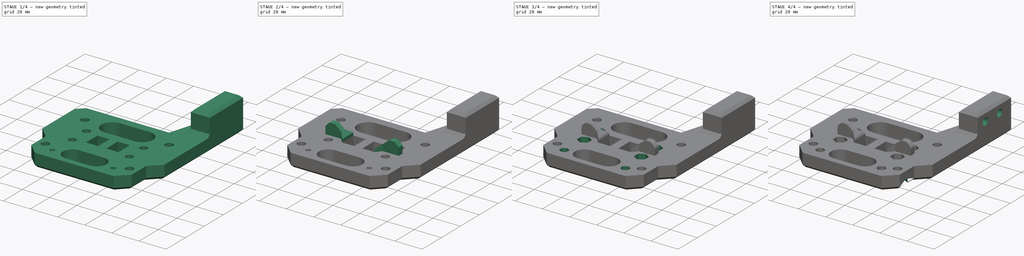
[diagram: build sequence overview — one tinted view per stage of 4, left to right]
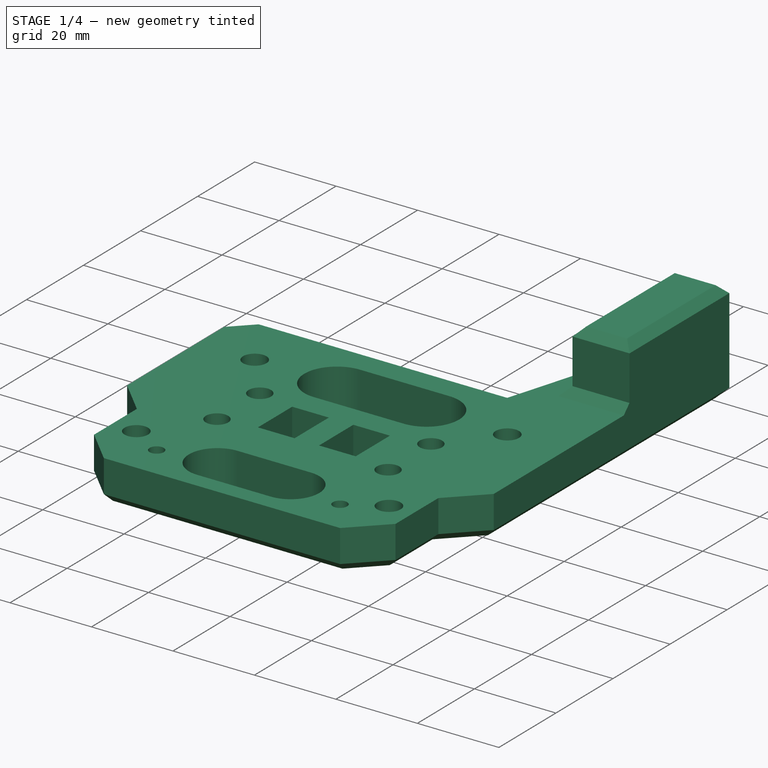
[diagram: stage 1 of 4 — iso view after this stage's code; geometry added in this stage tinted green]
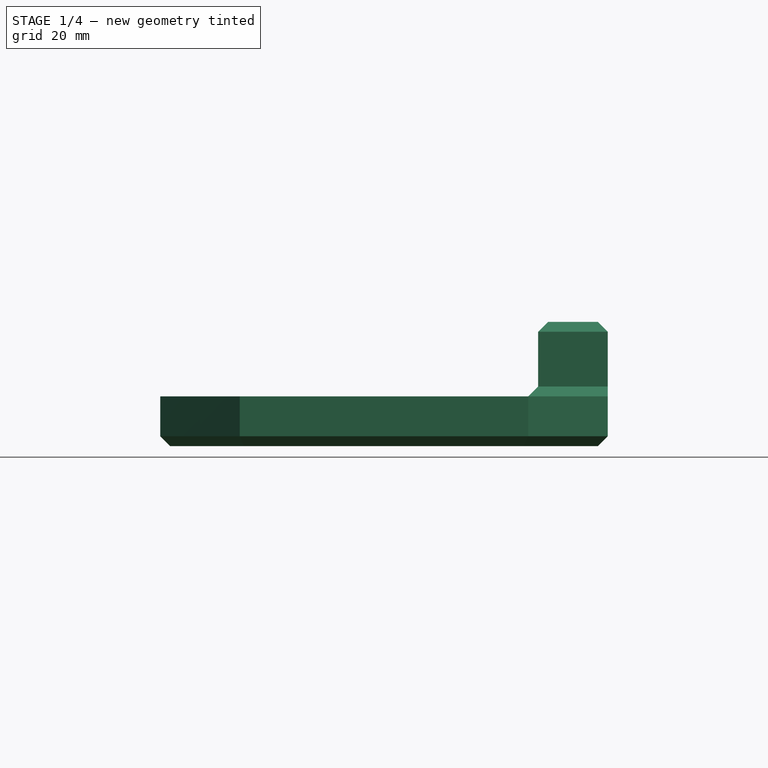
[diagram: stage 1 of 4 — front view after this stage's code; geometry added in this stage tinted green]
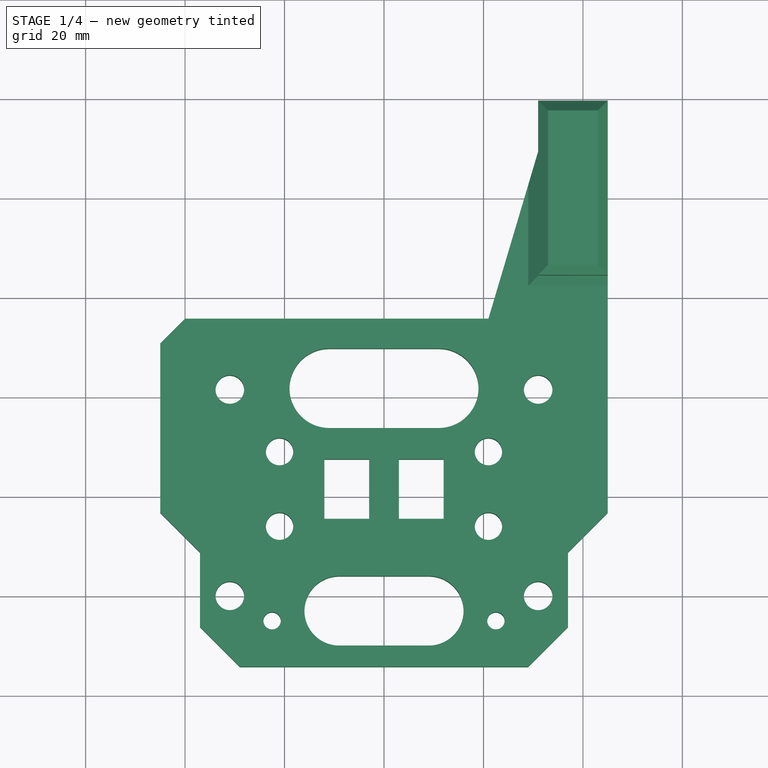
[diagram: stage 1 of 4 — top view after this stage's code; geometry added in this stage tinted green]
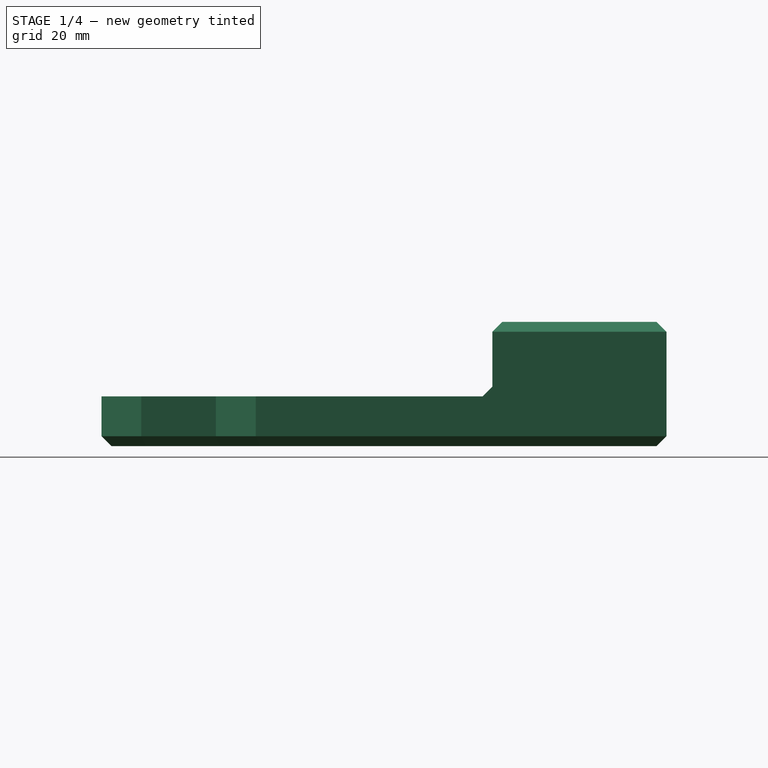
[diagram: stage 1 of 4 — right view after this stage's code; geometry added in this stage tinted green]
FCSTD DOCUMENT  (FreeCAD 0.20R29177 (Git))
Label: x-gantry-back
License: All rights reserved
LicenseURL: http://en.wikipedia.org/wiki/All_rights_reserved
objects: Sketcher::SketchObject×7, PartDesign::Plane×4, PartDesign::Pad×3, PartDesign::Chamfer×3, PartDesign::Pocket×3, PartDesign::Fillet×2, PartDesign::Hole×1, PartDesign::Body×1
note: 36 computed .brp shape members not serialized (recipe doc carries the construction recipe); baked Part::Feature solids carry a one-line shape summary decoded from their .brp

FEATURE [Sketcher::SketchObject] Sketch016  label="Base001"
  FullyConstrained = true
  MapMode = 5
  Support = -> [XY_Plane001]
  expr: Constraints[124] = 39
  sketch-geometry (53):
    g0: LineSegment StartX=0 StartY=0 StartZ=0 EndX=0 EndY=41.5 EndZ=0
    g1: LineSegment StartX=-31 StartY=41.5 StartZ=0 EndX=31 EndY=41.5 EndZ=0
    g2: Circle CenterX=-31 CenterY=41.5 CenterZ=0 NormalX=0 NormalY=0 NormalZ=1 AngleXU=0 Radius=2.875
    g3: Circle CenterX=31 CenterY=41.5 CenterZ=0 NormalX=0 NormalY=0 NormalZ=1 AngleXU=0 Radius=2.875
    g4: LineSegment StartX=45 StartY=55.75 StartZ=0 EndX=45 EndY=16.75 EndZ=0
    g5: LineSegment StartX=-45 StartY=16.75 StartZ=0 EndX=-45 EndY=50.75 EndZ=0
    g6: LineSegment StartX=-21 StartY=29 StartZ=0 EndX=-21 EndY=14 EndZ=0
    g7: LineSegment StartX=-12 StartY=27.5 StartZ=0 EndX=-3 EndY=27.5 EndZ=0
    g8: LineSegment StartX=-3 StartY=27.5 StartZ=0 EndX=-3 EndY=15.5 EndZ=0
    g9: LineSegment StartX=-3 StartY=15.5 StartZ=0 EndX=-12 EndY=15.5 EndZ=0
    g10: LineSegment StartX=-12 StartY=15.5 StartZ=0 EndX=-12 EndY=27.5 EndZ=0
    g11: Circle CenterX=-21 CenterY=29 CenterZ=0 NormalX=0 NormalY=0 NormalZ=1 AngleXU=0 Radius=2.75
    g12: Circle CenterX=-21 CenterY=14 CenterZ=0 NormalX=0 NormalY=0 NormalZ=1 AngleXU=0 Radius=2.75
    g13: LineSegment StartX=-21 StartY=21.5 StartZ=0 EndX=21 EndY=21.5 EndZ=0
    g14: LineSegment StartX=21 StartY=29 StartZ=0 EndX=21 EndY=14 EndZ=0
    g15: Circle CenterX=21 CenterY=29 CenterZ=0 NormalX=0 NormalY=0 NormalZ=1 AngleXU=0 Radius=2.75
    g16: Circle CenterX=21 CenterY=14 CenterZ=0 NormalX=0 NormalY=0 NormalZ=1 AngleXU=0 Radius=2.75
    g17: LineSegment StartX=3 StartY=27.5 StartZ=0 EndX=12 EndY=27.5 EndZ=0
    g18: LineSegment StartX=12 StartY=27.5 StartZ=0 EndX=12 EndY=15.5 EndZ=0
    g19: LineSegment StartX=12 StartY=15.5 StartZ=0 EndX=3 EndY=15.5 EndZ=0
    g20: LineSegment StartX=3 StartY=15.5 StartZ=0 EndX=3 EndY=27.5 EndZ=0
    g21: LineSegment StartX=-22.5 StartY=-5 StartZ=0 EndX=22.5 EndY=-5 EndZ=0
    g22: Circle CenterX=-22.5 CenterY=-5 CenterZ=0 NormalX=0 NormalY=0 NormalZ=1 AngleXU=0 Radius=1.75
    g23: Circle CenterX=22.5 CenterY=-5 CenterZ=0 NormalX=0 NormalY=0 NormalZ=1 AngleXU=0 Radius=1.75
    g24: LineSegment StartX=37 StartY=8.75 StartZ=0 EndX=37 EndY=-6.25 EndZ=0
    g25: LineSegment StartX=37 StartY=-6.25 StartZ=0 EndX=29 EndY=-14.25 EndZ=0
    g26: LineSegment StartX=-29 StartY=-14.25 StartZ=0 EndX=-37 EndY=-6.25 EndZ=0
    g27: LineSegment StartX=-37 StartY=-6.25 StartZ=0 EndX=-37 EndY=8.75 EndZ=0
    g28: LineSegment StartX=-37 StartY=8.75 StartZ=0 EndX=-45 EndY=16.75 EndZ=0
    g29: LineSegment StartX=37 StartY=8.75 StartZ=0 EndX=45 EndY=16.75 EndZ=0
    g30: LineSegment StartX=-29 StartY=-14.25 StartZ=0 EndX=29 EndY=-14.25 EndZ=0
    g31: ArcOfCircle CenterX=-9 CenterY=-3 CenterZ=0 NormalX=0 NormalY=0 NormalZ=1 AngleXU=0 Radius=7 StartAngle=1.5708 EndAngle=4.71239
    g32: ArcOfCircle CenterX=9 CenterY=-3 CenterZ=0 NormalX=0 NormalY=0 NormalZ=1 AngleXU=0 Radius=7 StartAngle=4.71239 EndAngle=7.85398
    g33: LineSegment StartX=-9 StartY=-10 StartZ=0 EndX=9 EndY=-10 EndZ=0
    g34: LineSegment StartX=-9 StartY=4 StartZ=0 EndX=9 EndY=4 EndZ=0
    g35: ArcOfCircle CenterX=-11 CenterY=41.75 CenterZ=0 NormalX=0 NormalY=0 NormalZ=1 AngleXU=0 Radius=8 StartAngle=1.5708 EndAngle=4.71239
    g36: ArcOfCircle CenterX=11 CenterY=41.75 CenterZ=0 NormalX=0 NormalY=0 NormalZ=1 AngleXU=0 Radius=8 StartAngle=4.71239 EndAngle=7.85398
    g37: LineSegment StartX=-11 StartY=33.75 StartZ=0 EndX=11 EndY=33.75 EndZ=0
    g38: LineSegment StartX=-11 StartY=49.75 StartZ=0 EndX=11 EndY=49.75 EndZ=0
    g39: LineSegment StartX=31 StartY=55.75 StartZ=0 EndX=31 EndY=65.75 EndZ=0
    g40: LineSegment StartX=31 StartY=65.75 StartZ=0 EndX=31 EndY=99.35 EndZ=0
    g41: LineSegment StartX=31 StartY=99.35 StartZ=0 EndX=45 EndY=99.35 EndZ=0
    g42: LineSegment StartX=45 StartY=99.35 StartZ=0 EndX=45 EndY=65.75 EndZ=0
    g43: LineSegment StartX=45 StartY=65.75 StartZ=0 EndX=45 EndY=55.75 EndZ=0
    g44: LineSegment StartX=31 StartY=55.75 StartZ=0 EndX=-40 EndY=55.75 EndZ=0
    g45: LineSegment StartX=-45 StartY=50.75 StartZ=0 EndX=-40 EndY=55.75 EndZ=0
    g46: LineSegment StartX=-45 StartY=50.75 StartZ=0 EndX=-45 EndY=55.75 EndZ=0
    g47: LineSegment StartX=-45 StartY=55.75 StartZ=0 EndX=-40 EndY=55.75 EndZ=0
    g48: Circle CenterX=-31 CenterY=0 CenterZ=0 NormalX=0 NormalY=0 NormalZ=1 AngleXU=0 Radius=2.875
    g49: Circle CenterX=31 CenterY=0 CenterZ=0 NormalX=0 NormalY=0 NormalZ=1 AngleXU=0 Radius=2.875
    g50: LineSegment StartX=-40 StartY=55.75 StartZ=0 EndX=21 EndY=55.75 EndZ=0
    g51: LineSegment StartX=21 StartY=55.75 StartZ=0 EndX=31 EndY=89.35 EndZ=0
    g52: LineSegment StartX=31 StartY=99.35 StartZ=0 EndX=31 EndY=89.35 EndZ=0
  constraints (141):
    c: Coincident(g0,g-1)
    c: PointOnObject(g0,g1)
    c: Symmetric(g1,g1,g0)
    c: DistanceY(g0,g0) = 41.5
    c: DistanceX(g1,g1) = 62
    c: Coincident(g2,g1)
    c: Coincident(g3,g1)
    c: Diameter(g3) = 5.75
    c: Diameter(g2) = 5.75
    c: Vertical(g4)
    c: Vertical(g5)
    c: Symmetric(g46,g4,g-2)
    c: DistanceX(g46,g4) = 90
    c: DistanceY(g3,g4) = 14.25
    c: DistanceY(g6,g6) = 15
    c: Coincident(g7,g8)
    c: Coincident(g8,g9)
    c: Coincident(g9,g10)
    c: Coincident(g10,g7)
    c: Horizontal(g7)
    c: Horizontal(g9)
    c: Vertical(g8)
    c: DistanceX(g7,g7) = 9
    c: DistanceY(g10,g10) = 12
    c: Coincident(g11,g6)
    c: Coincident(g12,g6)
    c: Diameter(g11) = 5.5
    c: Diameter(g12) = 5.5
    c: PointOnObject(g13,g6)
    c: Symmetric(g13,g13,g-2)
    c: Symmetric(g11,g12,g13)
    c: Symmetric(g7,g9,g13)
    c: PointOnObject(g13,g14)
    c: Symmetric(g14,g14,g13)
    c: DistanceY(g14,g14) = 15
    c: Coincident(g16,g14)
    c: Diameter(g15) = 5.5
    c: Diameter(g16) = 5.5
    c: Distance(g7,g0) = 3
    c: Distance(g11,g0) = 21
    c: Coincident(g17,g18)
    c: Coincident(g18,g19)
    c: Coincident(g19,g20)
    c: Coincident(g20,g17)
    c: Horizontal(g17)
    c: Horizontal(g19)
    c: Vertical(g18)
    c: DistanceX(g17,g17) = 9
    c: DistanceY(g20,g20) = 12
    c: DistanceX(g-1,g17) = 3
    c: Symmetric(g17,g19,g13)
    c: Symmetric(g21,g21,g-2)
    c: DistanceY(g21,g-1) = 5
    c: DistanceX(g21,g21) = 45
    c: Coincident(g22,g21)
    c: Coincident(g23,g21)
    c: Diameter(g23) = 3.5
    c: Vertical(g24)
    c: Coincident(g25,g24)
    c: Coincident(g27,g26)
    c: Vertical(g27)
    c: Coincident(g28,g27)
    c: Coincident(g29,g24)
    c: Horizontal(g29,g28)
    c: Horizontal(g24,g27)
    c: DistanceX(g27,g24) = 74
    c: DistanceY(g25,g43) = 70
    c: Coincident(g30,g26)
    c: Coincident(g30,g25)
    c: Horizontal(g30)
    c: Angle(g24,g25) = 2.35619
    c: Angle(g26,g27) = 2.35619
    c: Horizontal(g26,g24)
    c: Coincident(g28,g5)
    c: Angle(g28,g5) = 2.35619
    c: DistanceY(g25,g24) = 8
    c: DistanceY(g24,g24) = 15
    c: Equal(g22,g23)
    c: Tangent(g31,g34) = 1.5708
    c: Tangent(g31,g33) = -1.5708
    c: Tangent(g33,g32) = -1.5708
    c: Tangent(g34,g32) = 1.5708
    c: Horizontal(g33)
    c: Symmetric(g31,g32,g0)
    c: Diameter(g32) = 14
    c: DistanceX(g34,g34) = 18
    c: DistanceY(g32,g0) = 3
    c: Vertical(g15,g16)
    c: Horizontal(g15,g11)
    c: Tangent(g35,g38) = 1.5708
    c: Tangent(g35,g37) = -1.5708
    c: Tangent(g37,g36) = -1.5708
    c: Tangent(g38,g36) = 1.5708
    c: Horizontal(g37)
    c: Symmetric(g35,g36,g-2)
    c: Radius(g36) = 8
    c: DistanceY(g36,g43) = 6
    c: Coincident(g40,g39)
    c: Coincident(g41,g40)
    c: Coincident(g42,g41)
    c: Coincident(g43,g42)
    c: Vertical(g43)
    c: Distance(g41) = 14
    c: Perpendicular(g41,g40)
    c: Angle(g39,g40) = 3.14159
    c: Parallel(g42,g40)
    c: DistanceY(g43,g43) = 10
    c: Horizontal(g44)
    c: Vertical(g39)
    c: Coincident(g39,g44)
    c: DistanceY(g39,g40) = 43.6
    c: Horizontal(g39,g42)
    c: DistanceX(g46,g45) = 5
    c: DistanceY(g45,g46) = 5
    c: Coincident(g5,g45)
    c: Coincident(g46,g5)
    c: Vertical(g46)
    c: Coincident(g44,g45)
    c: Coincident(g47,g46)
    c: Coincident(g47,g44)
    c: Horizontal(g47)
    c: DistanceX(g44,g39) = 71
    c: DistanceY(g5,g5) = 34
    c: Coincident(g4,g29)
    c: DistanceY(g4,g43) = 39
    c: DistanceY(g48,g0) = 0
    c: Vertical(g2,g48)
    c: Symmetric(g49,g48,g0)
    c: Equal(g48,g2)
    c: Equal(g49,g3)
    c: DistanceX(g35,g36) = 22
    c: Coincident(g50,g45)
    c: PointOnObject(g50,g44)
    c: Coincident(g51,g50)
    c: PointOnObject(g51,g40)
    c: Coincident(g52,g41)
    c: Coincident(g52,g51)
    c: DistanceY(g52,g52) = 10
    c: DistanceX(g50,g51) = 10
    c: DistanceY(g0,g13) = 21.5  'BeltStandoffY'
    c: Vertical(g0)
FEATURE [PartDesign::Pad] Pad004  label="Base"
  AllowMultiFace = false
  Direction = (0,0,1)
  Length = 10
  Length2 = 100
  Profile = -> Sketch016
  ReferenceAxis = -> Sketch016 [N_Axis]
  Refine = true
  Type = 0
FEATURE [PartDesign::Plane] DatumPlane008  label="Front face"
  Length = 60
  MapMode = 5
  Placement = pos=(0,0,10) rot=(0,0,1;0rad)
  ResizeMode = 0
  Support = -> [Pad004]
  Width = 60
FEATURE [Sketcher::SketchObject] Sketch013  label="CableSupport001"
  FullyConstrained = true
  MapMode = 5
  Placement = pos=(0,0,10) rot=(0,0,1;0rad)
  Support = -> [DatumPlane008]
  sketch-geometry (4):
    g0: LineSegment StartX=45 StartY=99.35 StartZ=0 EndX=45 EndY=64.35 EndZ=0
    g1: LineSegment StartX=45 StartY=64.35 StartZ=0 EndX=31 EndY=64.35 EndZ=0
    g2: LineSegment StartX=31 StartY=64.35 StartZ=0 EndX=31 EndY=99.35 EndZ=0
    g3: LineSegment StartX=31 StartY=99.35 StartZ=0 EndX=45 EndY=99.35 EndZ=0
  constraints (12):
    c: Coincident(g0,g1)
    c: Coincident(g1,g2)
    c: Horizontal(g1)
    c: Vertical(g0)
    c: Vertical(g2)
    c: Coincident(g0,g3)
    c: Coincident(g3,g2)
    c: DistanceX(g-1,g1) = 31
    c: DistanceX(g3,g3) = 14
    c: DistanceY(g0,g0) = 35
    c: Equal(g1,g3)
    c: DistanceY(g-1,g2) = 99.35
FEATURE [Sketcher::SketchObject] Sketch018  label="M5Nuts001"
  FullyConstrained = true
  MapMode = 5
  Placement = pos=(0,0,10) rot=(0,0,1;0rad)
  Support = -> [DatumPlane008]
  sketch-geometry (42):
    g0: LineSegment StartX=-17 StartY=26.6906 StartZ=0 EndX=-17 EndY=31.3094 EndZ=0
    g1: LineSegment StartX=-17 StartY=31.3094 StartZ=0 EndX=-21 EndY=33.6188 EndZ=0
    g2: LineSegment StartX=-21 StartY=33.6188 StartZ=0 EndX=-25 EndY=31.3094 EndZ=0
    g3: LineSegment StartX=-25 StartY=31.3094 StartZ=0 EndX=-25 EndY=26.6906 EndZ=0
    g4: LineSegment StartX=-25 StartY=26.6906 StartZ=0 EndX=-21 EndY=24.3812 EndZ=0
    g5: LineSegment StartX=-21 StartY=24.3812 StartZ=0 EndX=-17 EndY=26.6906 EndZ=0
    g6: Circle CenterX=-21 CenterY=29 CenterZ=0 NormalX=0 NormalY=0 NormalZ=1 AngleXU=0 Radius=4.6188
    g7: LineSegment StartX=-17 StartY=11.6906 StartZ=0 EndX=-17 EndY=16.3094 EndZ=0
    g8: LineSegment StartX=-17 StartY=16.3094 StartZ=0 EndX=-21 EndY=18.6188 EndZ=0
    g9: LineSegment StartX=-21 StartY=18.6188 StartZ=0 EndX=-25 EndY=16.3094 EndZ=0
    g10: LineSegment StartX=-25 StartY=16.3094 StartZ=0 EndX=-25 EndY=11.6906 EndZ=0
    g11: LineSegment StartX=-25 StartY=11.6906 StartZ=0 EndX=-21 EndY=9.3812 EndZ=0
    g12: LineSegment StartX=-21 StartY=9.3812 StartZ=0 EndX=-17 EndY=11.6906 EndZ=0
    g13: Circle CenterX=-21 CenterY=14 CenterZ=0 NormalX=0 NormalY=0 NormalZ=1 AngleXU=0 Radius=4.6188
    g14: LineSegment StartX=-19.75 StartY=-6.58771 StartZ=0 EndX=-19.75 EndY=-3.41229 EndZ=0
    g15: LineSegment StartX=-19.75 StartY=-3.41229 StartZ=0 EndX=-22.5 EndY=-1.82457 EndZ=0
    g16: LineSegment StartX=-22.5 StartY=-1.82457 StartZ=0 EndX=-25.25 EndY=-3.41229 EndZ=0
    g17: LineSegment StartX=-25.25 StartY=-3.41229 StartZ=0 EndX=-25.25 EndY=-6.58771 EndZ=0
    g18: LineSegment StartX=-25.25 StartY=-6.58771 StartZ=0 EndX=-22.5 EndY=-8.17543 EndZ=0
    g19: LineSegment StartX=-22.5 StartY=-8.17543 StartZ=0 EndX=-19.75 EndY=-6.58771 EndZ=0
    g20: Circle CenterX=-22.5 CenterY=-5 CenterZ=0 NormalX=0 NormalY=0 NormalZ=1 AngleXU=0 Radius=3.17543
    g21: LineSegment StartX=25.25 StartY=-6.58771 StartZ=0 EndX=25.25 EndY=-3.41229 EndZ=0
    g22: LineSegment StartX=25.25 StartY=-3.41229 StartZ=0 EndX=22.5 EndY=-1.82457 EndZ=0
    g23: LineSegment StartX=22.5 StartY=-1.82457 StartZ=0 EndX=19.75 EndY=-3.41229 EndZ=0
    g24: LineSegment StartX=19.75 StartY=-3.41229 StartZ=0 EndX=19.75 EndY=-6.58771 EndZ=0
    g25: LineSegment StartX=19.75 StartY=-6.58771 StartZ=0 EndX=22.5 EndY=-8.17543 EndZ=0
    g26: LineSegment StartX=22.5 StartY=-8.17543 StartZ=0 EndX=25.25 EndY=-6.58771 EndZ=0
    g27: Circle CenterX=22.5 CenterY=-5 CenterZ=0 NormalX=0 NormalY=0 NormalZ=1 AngleXU=0 Radius=3.17543
    g28: LineSegment StartX=25 StartY=11.6906 StartZ=0 EndX=25 EndY=16.3094 EndZ=0
    g29: LineSegment StartX=25 StartY=16.3094 StartZ=0 EndX=21 EndY=18.6188 EndZ=0
    g30: LineSegment StartX=21 StartY=18.6188 StartZ=0 EndX=17 EndY=16.3094 EndZ=0
    g31: LineSegment StartX=17 StartY=16.3094 StartZ=0 EndX=17 EndY=11.6906 EndZ=0
    g32: LineSegment StartX=17 StartY=11.6906 StartZ=0 EndX=21 EndY=9.3812 EndZ=0
    g33: LineSegment StartX=21 StartY=9.3812 StartZ=0 EndX=25 EndY=11.6906 EndZ=0
    g34: Circle CenterX=21 CenterY=14 CenterZ=0 NormalX=0 NormalY=0 NormalZ=1 AngleXU=0 Radius=4.6188
    g35: LineSegment StartX=25 StartY=26.6906 StartZ=0 EndX=25 EndY=31.3094 EndZ=0
    g36: LineSegment StartX=25 StartY=31.3094 StartZ=0 EndX=21 EndY=33.6188 EndZ=0
    g37: LineSegment StartX=21 StartY=33.6188 StartZ=0 EndX=17 EndY=31.3094 EndZ=0
    g38: LineSegment StartX=17 StartY=31.3094 StartZ=0 EndX=17 EndY=26.6906 EndZ=0
    g39: LineSegment StartX=17 StartY=26.6906 StartZ=0 EndX=21 EndY=24.3812 EndZ=0
    g40: LineSegment StartX=21 StartY=24.3812 StartZ=0 EndX=25 EndY=26.6906 EndZ=0
    g41: Circle CenterX=21 CenterY=29 CenterZ=0 NormalX=0 NormalY=0 NormalZ=1 AngleXU=0 Radius=4.6188
  constraints (100):
    c: Coincident(g0,g1)
    c: Coincident(g1,g2)
    c: Coincident(g2,g3)
    c: Coincident(g3,g4)
    c: Coincident(g4,g5)
    c: Coincident(g5,g0)
    c: Equal(g0, g1-g5) x5
    c: PointOnObject(g0,g6)
    c: PointOnObject(g1,g6)
    c: PointOnObject(g2,g6)
    c: PointOnObject(g3,g6)
    c: PointOnObject(g4,g6)
    c: PointOnObject(g5,g6)
    c: Coincident(g7,g8)
    c: Coincident(g8,g9)
    c: Coincident(g9,g10)
    c: Coincident(g10,g11)
    c: Coincident(g11,g12)
    c: Coincident(g12,g7)
    c: Equal(g7, g8-g12) x5
    c: PointOnObject(g7,g13)
    c: PointOnObject(g8,g13)
    c: PointOnObject(g9,g13)
    c: PointOnObject(g10,g13)
    c: PointOnObject(g11,g13)
    c: PointOnObject(g12,g13)
    c: Coincident(g14,g15)
    c: Coincident(g15,g16)
    c: Coincident(g16,g17)
    c: Coincident(g17,g18)
    c: Coincident(g18,g19)
    c: Coincident(g19,g14)
    c: Equal(g14, g15-g19) x5
    c: PointOnObject(g14,g20)
    c: PointOnObject(g15,g20)
    c: PointOnObject(g16,g20)
    c: PointOnObject(g17,g20)
    c: PointOnObject(g18,g20)
    c: PointOnObject(g19,g20)
    c: Coincident(g21,g22)
    c: Coincident(g22,g23)
    c: Coincident(g23,g24)
    c: Coincident(g24,g25)
    c: Coincident(g25,g26)
    c: Coincident(g26,g21)
    c: Equal(g21, g22-g26) x5
    c: PointOnObject(g21,g27)
    c: PointOnObject(g22,g27)
    c: PointOnObject(g23,g27)
    c: PointOnObject(g24,g27)
    c: PointOnObject(g25,g27)
    c: PointOnObject(g26,g27)
    c: Coincident(g28,g29)
    c: Coincident(g29,g30)
    c: Coincident(g30,g31)
    c: Coincident(g31,g32)
    c: Coincident(g32,g33)
    c: Coincident(g33,g28)
    c: Equal(g28, g29-g33) x5
    c: PointOnObject(g28,g34)
    c: PointOnObject(g29,g34)
    c: PointOnObject(g30,g34)
    c: PointOnObject(g31,g34)
    c: PointOnObject(g32,g34)
    c: PointOnObject(g33,g34)
    c: Coincident(g35,g36)
    c: Coincident(g36,g37)
    c: Coincident(g37,g38)
    c: Coincident(g38,g39)
    c: Coincident(g39,g40)
    c: Coincident(g40,g35)
    c: Equal(g35, g36-g40) x5
    c: PointOnObject(g35,g41)
    c: PointOnObject(g36,g41)
    c: PointOnObject(g37,g41)
    c: PointOnObject(g38,g41)
    c: PointOnObject(g39,g41)
    c: PointOnObject(g40,g41)
    c: Vertical(g10)
    c: Vertical(g3)
    c: Vertical(g17)
    c: Vertical(g24)
    c: Vertical(g31)
    c: Vertical(g38)
    c: DistanceX(g20,g-1) = 22.5
    c: DistanceX(g-1,g27) = 22.5
    c: DistanceX(g-1,g34) = 21
    c: DistanceX(g-1,g41) = 21
    c: DistanceY(g20,g-1) = 5
    c: DistanceY(g27,g-1) = 5
    c: DistanceX(g2,g0) = 8
    c: Equal(g6,g13)
    c: Equal(g13,g34)
    c: Equal(g34,g41)
    c: DistanceX(g17,g14) = 5.5
    c: Equal(g20,g27)
    c: DistanceY(g13,g6) = 15
    c: DistanceY(g-1,g13) = 14
    c: Symmetric(g13,g34,g-2)
    c: Symmetric(g41,g6,g-2)
FEATURE [PartDesign::Plane] DatumPlane009  label="Part number plane"
  Length = 60
  MapMode = 5
  Placement = pos=(0,55.75,0) rot=(0,0.707107,0.707107;3.14159rad)
  ResizeMode = 0
  Support = -> [Pad004]
  Width = 60
FEATURE [Sketcher::SketchObject] Sketch021
  FullyConstrained = true
  MapMode = 5
  Placement = pos=(0,0,10) rot=(0,0,1;0rad)
  Support = -> [DatumPlane008]
  expr: Constraints[36] = <<Base001>>.Constraints.BeltStandoffY
  sketch-geometry (13):
    g0: LineSegment StartX=-12 StartY=27.5 StartZ=0 EndX=-15.3564 EndY=23.5 EndZ=0
    g1: LineSegment StartX=-15.3564 StartY=23.5 StartZ=0 EndX=-27 EndY=23.5 EndZ=0
    g2: LineSegment StartX=-27 StartY=23.5 StartZ=0 EndX=-27 EndY=19.5 EndZ=0
    g3: LineSegment StartX=-27 StartY=19.5 StartZ=0 EndX=-15.3564 EndY=19.5 EndZ=0
    g4: LineSegment StartX=-15.3564 StartY=19.5 StartZ=0 EndX=-12 EndY=15.5 EndZ=0
    g5: LineSegment StartX=-12 StartY=15.5 StartZ=0 EndX=-12 EndY=27.5 EndZ=0
    g6: LineSegment StartX=12 StartY=27.5 StartZ=0 EndX=12 EndY=15.5 EndZ=0
    g7: LineSegment StartX=12 StartY=15.5 StartZ=0 EndX=15.3564 EndY=19.5 EndZ=0
    g8: LineSegment StartX=15.3564 StartY=19.5 StartZ=0 EndX=27 EndY=19.5 EndZ=0
    g9: LineSegment StartX=27 StartY=19.5 StartZ=0 EndX=27 EndY=23.5 EndZ=0
    g10: LineSegment StartX=27 StartY=23.5 StartZ=0 EndX=15.3564 EndY=23.5 EndZ=0
    g11: LineSegment StartX=15.3564 StartY=23.5 StartZ=0 EndX=12 EndY=27.5 EndZ=0
    g12: LineSegment StartX=-27 StartY=21.5 StartZ=0 EndX=27 EndY=21.5 EndZ=0
  constraints (38):
    c: Coincident(g0,g1)
    c: Horizontal(g1)
    c: Coincident(g1,g2)
    c: Vertical(g2)
    c: Coincident(g2,g3)
    c: Horizontal(g3)
    c: Coincident(g3,g4)
    c: Coincident(g4,g5)
    c: Coincident(g5,g0)
    c: Vertical(g5)
    c: DistanceX(g4,g-1) = 12
    c: DistanceY(g5,g5) = 12
    c: DistanceY(g2,g2) = 4
    c: Equal(g1,g3)
    c: Angle(g0,g5) = 0.698132
    c: Angle(g5,g4) = 0.698132
    c: DistanceX(g2,g4) = 15
    c: Vertical(g6)
    c: Coincident(g6,g7)
    c: Coincident(g7,g8)
    c: Horizontal(g8)
    c: Coincident(g8,g9)
    c: Coincident(g9,g10)
    c: Horizontal(g10)
    c: Coincident(g10,g11)
    c: Coincident(g11,g6)
    c: Equal(g10,g8)
    c: DistanceY(g6,g6) = 12
    c: DistanceY(g9,g9) = 4
    c: Angle(g6,g11) = 0.698132
    c: Angle(g7,g6) = 0.698132
    c: DistanceX(g-1,g6) = 12
    c: DistanceX(g6,g8) = 15
    c: PointOnObject(g12,g2)
    c: PointOnObject(g12,g9)
    c: Symmetric(g2,g1,g12)
    c: DistanceY(g-1,g12) = 21.5
    c: Symmetric(g8,g9,g12)
FEATURE [PartDesign::Plane] DatumPlane012  label="Drag chain mount inner plane"
  Length = 60
  MapMode = 5
  Placement = pos=(31,-1.12e-14,0) rot=(-0.57735,0.57735,0.57735;4.18879rad)
  ResizeMode = 0
  Support = -> [Pad004]
  Width = 60
FEATURE [Sketcher::SketchObject] Sketch015
  FullyConstrained = false
  MapMode = 5
  Placement = pos=(31,-1.12e-14,0) rot=(-0.57735,0.57735,0.57735;4.18879rad)
  Support = -> [DatumPlane012]
  expr: Constraints[38] = <<Sketch022>>.Constraints.XOffset
  expr: Constraints[39] = <<Sketch022>>.Constraints.YOffset
  sketch-geometry (14):
    g0: LineSegment StartX=-84.9983 StartY=21.3553 StartZ=0 EndX=-89.5017 EndY=21.3553 EndZ=0
    g1: LineSegment StartX=-89.5017 StartY=21.3553 StartZ=0 EndX=-91.7533 EndY=17.4553 EndZ=0
    g2: LineSegment StartX=-91.7533 StartY=17.4553 StartZ=0 EndX=-89.5017 EndY=13.5553 EndZ=0
    g3: LineSegment StartX=-89.5017 StartY=13.5553 StartZ=0 EndX=-84.9983 EndY=13.5553 EndZ=0
    g4: LineSegment StartX=-84.9983 StartY=13.5553 StartZ=0 EndX=-82.7467 EndY=17.4553 EndZ=0
    g5: LineSegment StartX=-82.7467 StartY=17.4553 StartZ=0 EndX=-84.9983 EndY=21.3553 EndZ=0
    g6: Circle CenterX=-87.25 CenterY=17.4553 CenterZ=0 NormalX=0 NormalY=0 NormalZ=1 AngleXU=0 Radius=4.50333
    g7: LineSegment StartX=-67.7467 StartY=17.5 StartZ=0 EndX=-69.9983 EndY=21.4 EndZ=0
    g8: LineSegment StartX=-69.9983 StartY=21.4 StartZ=0 EndX=-74.5017 EndY=21.4 EndZ=0
    g9: LineSegment StartX=-74.5017 StartY=21.4 StartZ=0 EndX=-76.7533 EndY=17.5 EndZ=0
    g10: LineSegment StartX=-76.7533 StartY=17.5 StartZ=0 EndX=-74.5017 EndY=13.6 EndZ=0
    g11: LineSegment StartX=-74.5017 StartY=13.6 StartZ=0 EndX=-69.9983 EndY=13.6 EndZ=0
    g12: LineSegment StartX=-69.9983 StartY=13.6 StartZ=0 EndX=-67.7467 EndY=17.5 EndZ=0
    g13: Circle CenterX=-72.25 CenterY=17.5 CenterZ=0 NormalX=0 NormalY=0 NormalZ=1 AngleXU=0 Radius=4.50333
  constraints (33):
    c: Coincident(g0,g1)
    c: Coincident(g1,g2)
    c: Coincident(g2,g3)
    c: Coincident(g3,g4)
    c: Coincident(g4,g5)
    c: Coincident(g5,g0)
    c: Equal(g0, g1-g5) x5
    c: PointOnObject(g0,g6)
    c: PointOnObject(g1,g6)
    c: PointOnObject(g2,g6)
    c: PointOnObject(g3,g6)
    c: PointOnObject(g4,g6)
    c: PointOnObject(g5,g6)
    c: Coincident(g7,g8)
    c: Coincident(g8,g9)
    c: Coincident(g9,g10)
    c: Coincident(g10,g11)
    c: Coincident(g11,g12)
    c: Coincident(g12,g7)
    c: Equal(g7, g8-g12) x5
    c: PointOnObject(g7,g13)
    c: PointOnObject(g8,g13)
    c: PointOnObject(g9,g13)
    c: PointOnObject(g10,g13)
    c: PointOnObject(g11,g13)
    c: PointOnObject(g12,g13)
    c: Equal(g6,g13)
    c: Horizontal(g0)
    c: Horizontal(g8)
    c: DistanceY(g3,g0) = 7.8
    c: DistanceX(g13,g-1) = 72.25
    c: DistanceY(g-1,g13) = 17.5
    c: DistanceX(g6,g13) = 15
FEATURE [Sketcher::SketchObject] Sketch022
  FullyConstrained = true
  MapMode = 5
  Placement = pos=(31,-1.12e-14,0) rot=(-0.57735,0.57735,0.57735;4.18879rad)
  Support = -> [DatumPlane012]
  sketch-geometry (13):
    g0: GeomPoint X=-79.75 Y=17.5 Z=0
    g1: LineSegment StartX=-79.75 StartY=17.5 StartZ=0 EndX=-72.25 EndY=17.5 EndZ=0
    g2: LineSegment StartX=-79.75 StartY=17.5 StartZ=0 EndX=-87.25 EndY=17.5 EndZ=0
    g3: Circle CenterX=-72.25 CenterY=17.5 CenterZ=0 NormalX=0 NormalY=0 NormalZ=1 AngleXU=0 Radius=2.5
    g4: Circle CenterX=-87.25 CenterY=17.5 CenterZ=0 NormalX=0 NormalY=0 NormalZ=1 AngleXU=0 Radius=2.5
    g5: LineSegment StartX=-98.5 StartY=-15 StartZ=0 EndX=-61 EndY=-15 EndZ=0
    g6: LineSegment StartX=-61 StartY=-15 StartZ=0 EndX=-61 EndY=25 EndZ=0
    g7: LineSegment StartX=-61 StartY=25 StartZ=0 EndX=-98.5 EndY=25 EndZ=0
    g8: LineSegment StartX=-98.5 StartY=25 StartZ=0 EndX=-98.5 EndY=-15 EndZ=0
    g9: GeomPoint X=-79.75 Y=25 Z=0
    g10: GeomPoint X=-79.75 Y=25 Z=0
    g11: GeomPoint X=-79.75 Y=25 Z=0
    g12: GeomPoint X=-79.75 Y=25 Z=0
  constraints (30):
    c: Coincident(g1,g0)
    c: Horizontal(g1)
    c: Horizontal(g2)
    c: Coincident(g2,g1)
    c: Equal(g2,g1)
    c: Coincident(g3,g1)
    c: Coincident(g4,g2)
    c: Distance(g4,g3) = 15
    c: Equal(g3,g4)
    c: Radius(g3) = 2.5
    c: Coincident(g5,g6)
    c: Coincident(g6,g7)
    c: Coincident(g7,g8)
    c: Coincident(g8,g5)
    c: Horizontal(g5)
    c: Horizontal(g7)
    c: Vertical(g6)
    c: Vertical(g8)
    c: Coincident(g10,g9)
    c: Coincident(g11,g9)
    c: Coincident(g12,g9)
    c: Symmetric(g7,g7,g9)
    c: Vertical(g9,g0)
    c: DistanceY(g3,g6) = 7.5
    c: DistanceX(g7,g6) = 37.5
    c: DistanceY(g6,g6) = 40
    c: DistanceY(g-1,g6) = 25
    c: DistanceX(g6,g-1) = 61
    c: DistanceX(g3,g-1) = 72.25  'XOffset'
    c: DistanceY(g-1,g3) = 17.5  'YOffset'
FEATURE [PartDesign::Pad] Pad007  label="Pad cable chain support"
  AllowMultiFace = false
  BaseFeature = -> Pad004
  Direction = (0,0,1)
  Length = 15
  Length2 = 100
  Profile = -> Sketch013
  Type = 0
FEATURE [Sketcher::SketchObject] Sketch023  label="M5SlotCutOuts001"
  FullyConstrained = true
  MapMode = 5
  Support = -> [XY_Plane001]
  sketch-geometry (5):
    g0: Circle CenterX=-31 CenterY=41.5 CenterZ=0 NormalX=0 NormalY=0 NormalZ=1 AngleXU=0 Radius=6
    g1: Circle CenterX=31 CenterY=41.5 CenterZ=0 NormalX=0 NormalY=0 NormalZ=1 AngleXU=0 Radius=6
    g2: Circle CenterX=-31 CenterY=0 CenterZ=0 NormalX=0 NormalY=0 NormalZ=1 AngleXU=0 Radius=6
    g3: LineSegment StartX=-31 StartY=41.5 StartZ=0 EndX=31 EndY=41.5 EndZ=0
    g4: Circle CenterX=31 CenterY=0 CenterZ=0 NormalX=0 NormalY=0 NormalZ=1 AngleXU=0 Radius=6
  constraints (12):
    c: Symmetric(g0,g1,g-2)
    c: DistanceX(g3,g3) = 62
    c: DistanceY(g-1,g0) = 41.5
    c: DistanceY(g2,g-1) = 0
    c: Equal(g2,g0)
    c: Equal(g0,g1)
    c: Equal(g2,g4)
    c: Diameter(g2) = 12
    c: Vertical(g2,g0)
    c: Coincident(g1,g3)
    c: Coincident(g3,g0)
    c: Symmetric(g2,g4,g-2)
FEATURE [PartDesign::Chamfer] Chamfer  label="Elephant's foot chamfer"
  Angle = 45
  Base = -> Pad007 [Edge12,Edge13,Edge14,Edge15,Edge16,Edge17,Edge18,Edge19,Edge20,Edge21,Edge22,Edge3,Edge6,Edge56,Edge132,Edge59,Edge133,Edge23,Edge70,Edge55]
  BaseFeature = -> Pad007
  ChamferType = 0
  FlipDirection = false
  Size = 2
  Size2 = 1
  SupportTransform = false
  UseAllEdges = false
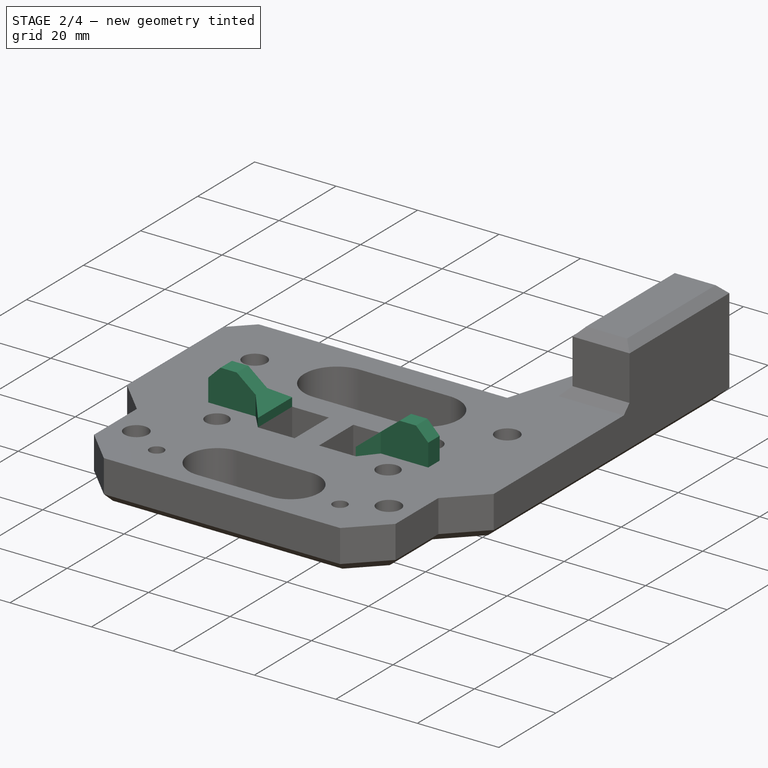
[diagram: stage 2 of 4 — iso view after this stage's code; geometry added in this stage tinted green]
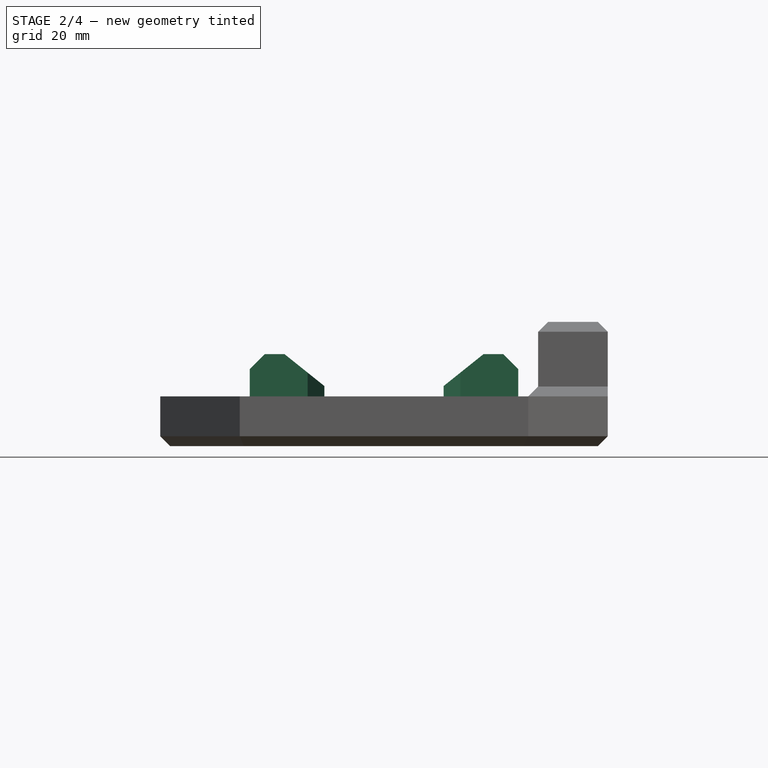
[diagram: stage 2 of 4 — front view after this stage's code; geometry added in this stage tinted green]
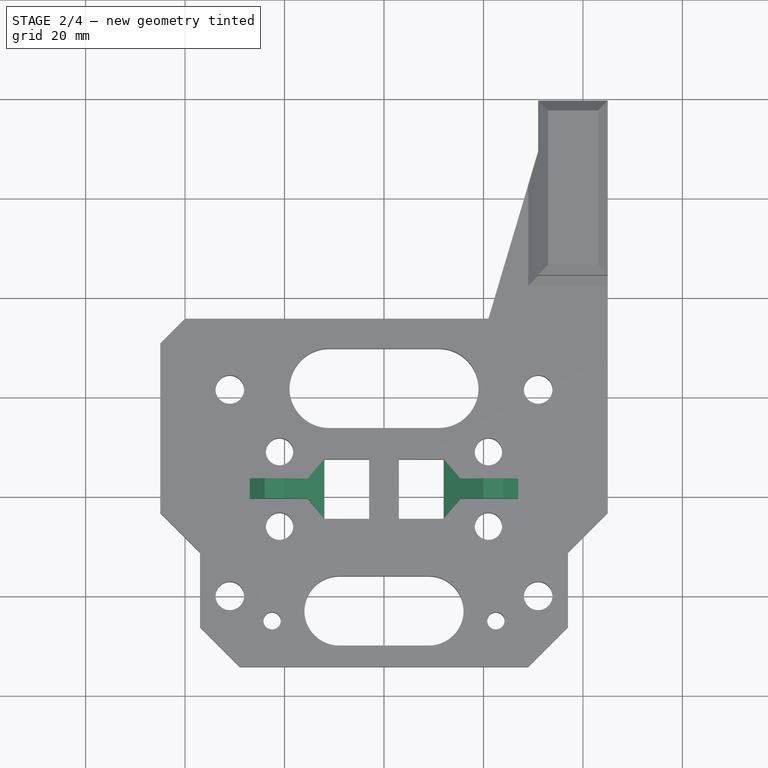
[diagram: stage 2 of 4 — top view after this stage's code; geometry added in this stage tinted green]
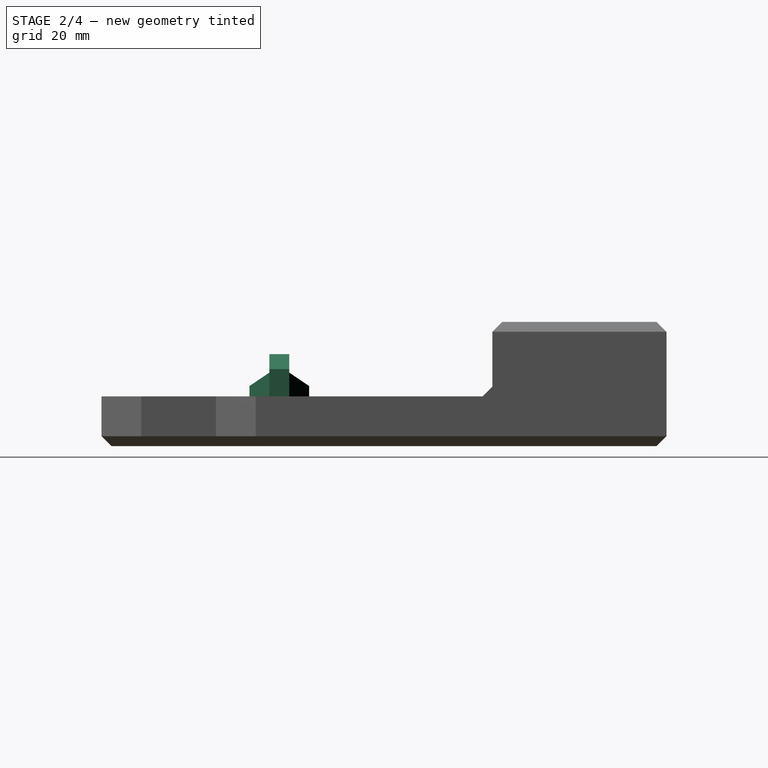
[diagram: stage 2 of 4 — right view after this stage's code; geometry added in this stage tinted green]
FEATURE [PartDesign::Pad] Pad006  label="Pad belt standoffs"
  BaseFeature = -> Chamfer
  Direction = (0,0,1)
  Length = 8.5
  Length2 = 100
  Profile = -> Sketch021
  Type = 0
FEATURE [PartDesign::Plane] DatumPlane010  label="PrintPlane"
  Length = 61.8921
  MapMode = 5
  Placement = pos=(21.5,0,-21.5) rot=(0.678598,0.678598,0.281085;2.59356rad)
  ResizeMode = 0
  Support = -> [Pad006]
  Width = 82.6027
FEATURE [PartDesign::Chamfer] Chamfer017  label="Belt standoff chamfer inner"
  Angle = 45
  Base = -> Pad006 [Edge210,Edge209]
  BaseFeature = -> Pad006
  ChamferType = 1
  FlipDirection = false
  Size = 6.4
  Size2 = 8
  SupportTransform = false
  UseAllEdges = false
FEATURE [PartDesign::Chamfer] Chamfer018  label="Belt standoff chamfer outer"
  Angle = 45
  Base = -> Chamfer017 [Edge137,Edge62]
  BaseFeature = -> Chamfer017
  ChamferType = 0
  FlipDirection = false
  Size = 3
  Size2 = 1
  SupportTransform = false
  UseAllEdges = false
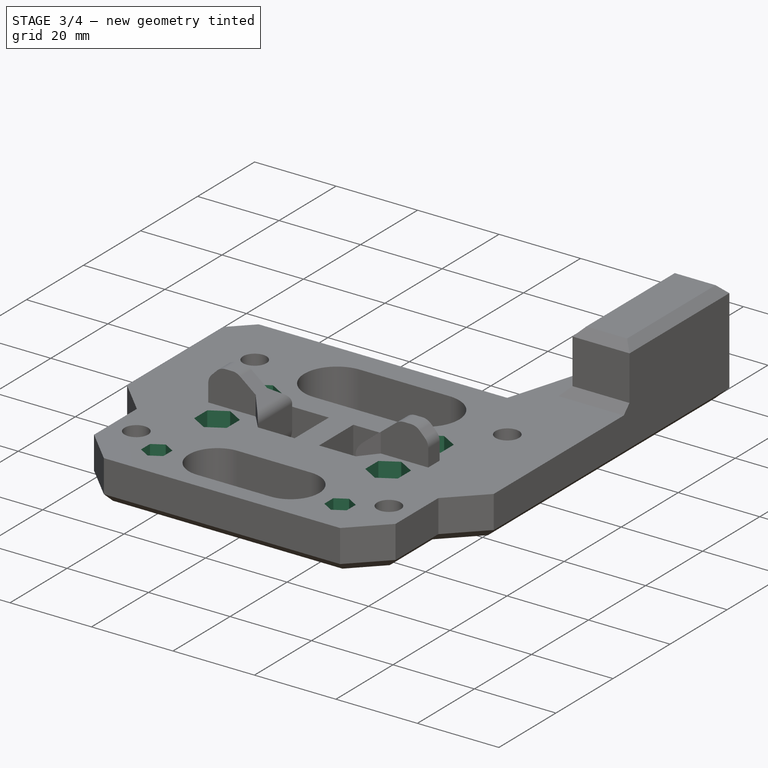
[diagram: stage 3 of 4 — iso view after this stage's code; geometry added in this stage tinted green]
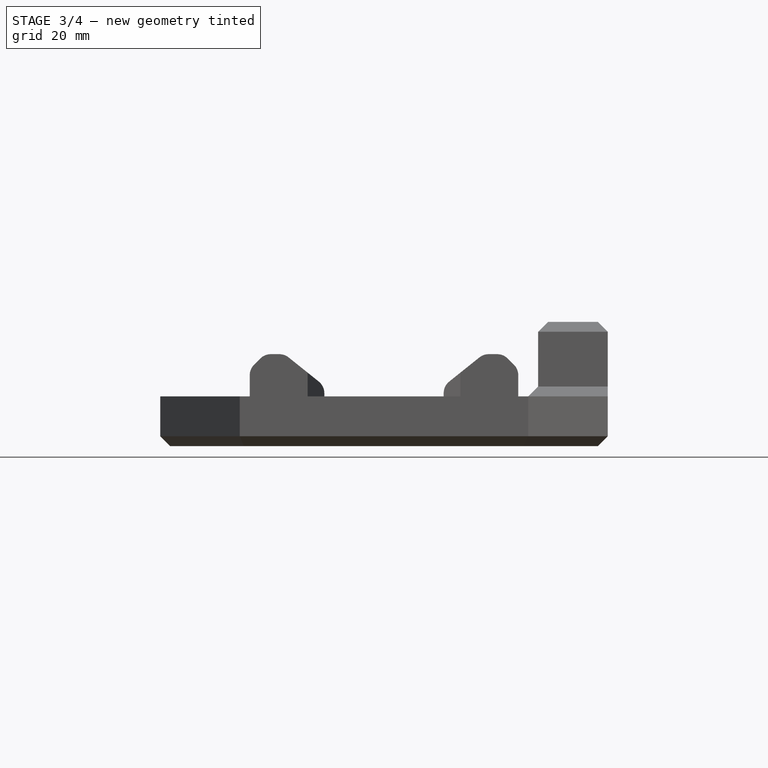
[diagram: stage 3 of 4 — front view after this stage's code; geometry added in this stage tinted green]
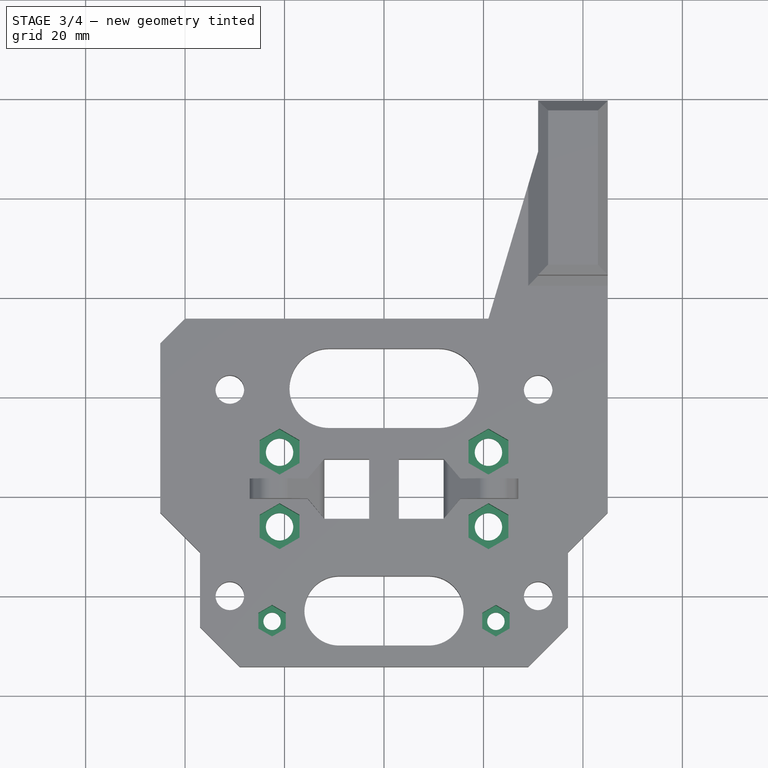
[diagram: stage 3 of 4 — top view after this stage's code; geometry added in this stage tinted green]
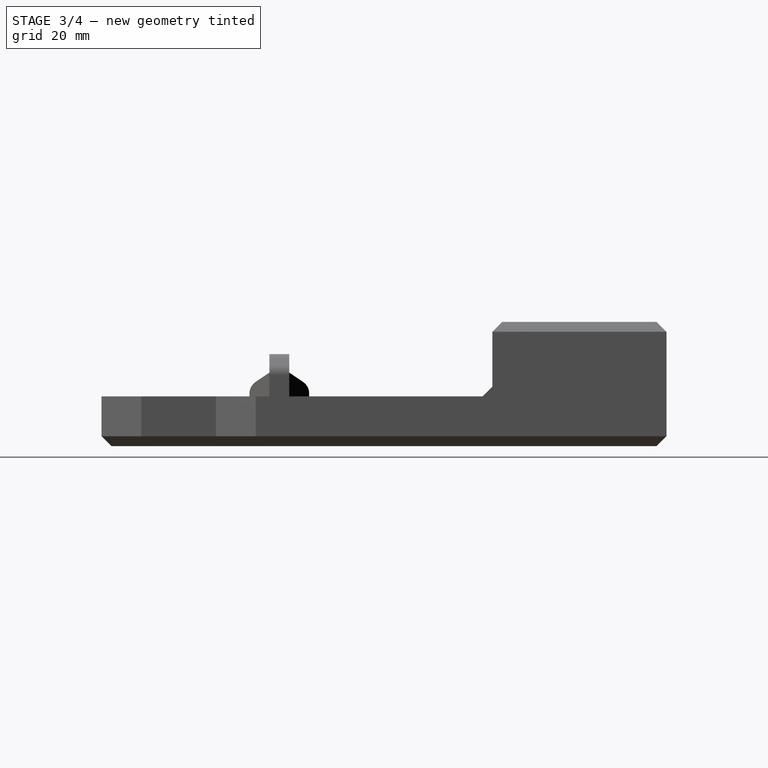
[diagram: stage 3 of 4 — right view after this stage's code; geometry added in this stage tinted green]
FEATURE [PartDesign::Fillet] Fillet  label="Belt standoff smoothing"
  Base = -> Chamfer018 [Edge9,Edge8,Edge11,Edge13,Edge209,Edge210,Edge212,Edge141]
  BaseFeature = -> Chamfer018
  Radius = 3
  SupportTransform = false
  UseAllEdges = false
FEATURE [PartDesign::Fillet] Fillet007  label="Belt guide"
  Base = -> Fillet [Edge187,Edge228]
  BaseFeature = -> Fillet
  Radius = 5
  SupportTransform = false
  UseAllEdges = false
FEATURE [PartDesign::Pocket] Pocket010  label="Topside nut pockets"
  AllowMultiFace = false
  BaseFeature = -> Fillet007
  Direction = (0,0,-1)
  Length = 7.5
  Length2 = 100
  Profile = -> Sketch018
  Refine = true
  Type = 0
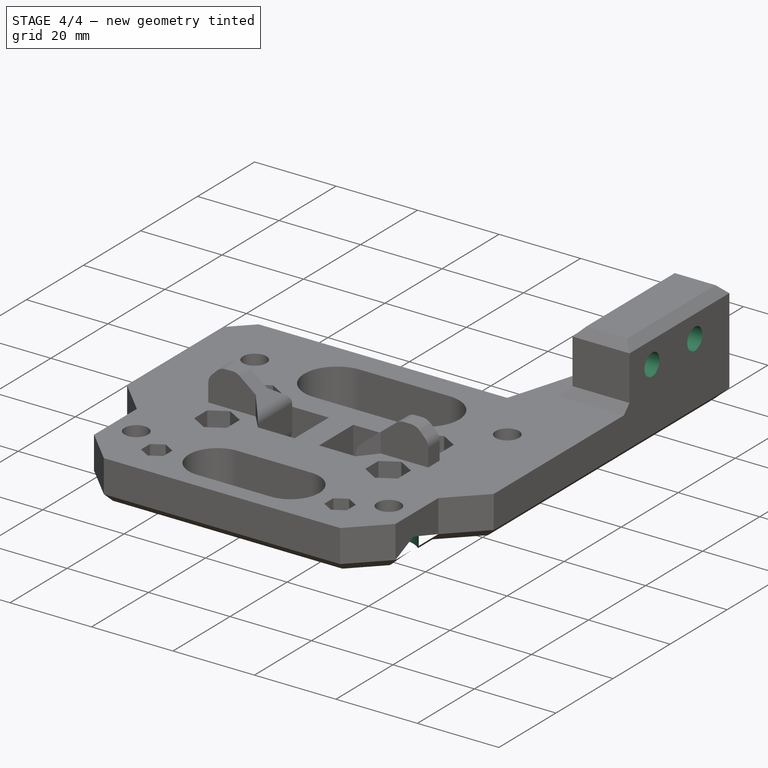
[diagram: stage 4 of 4 — iso view after this stage's code; geometry added in this stage tinted green]
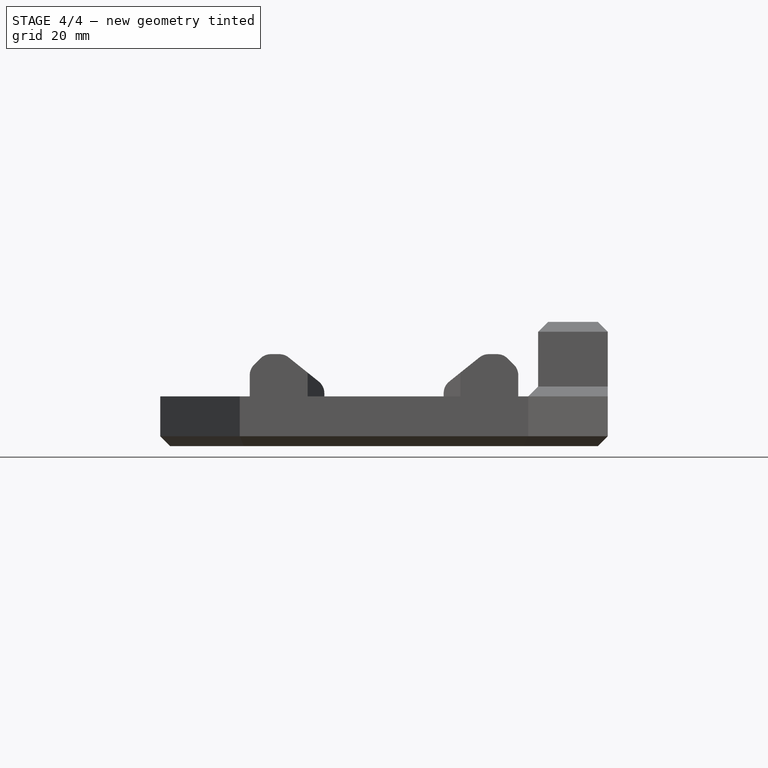
[diagram: stage 4 of 4 — front view after this stage's code; geometry added in this stage tinted green]
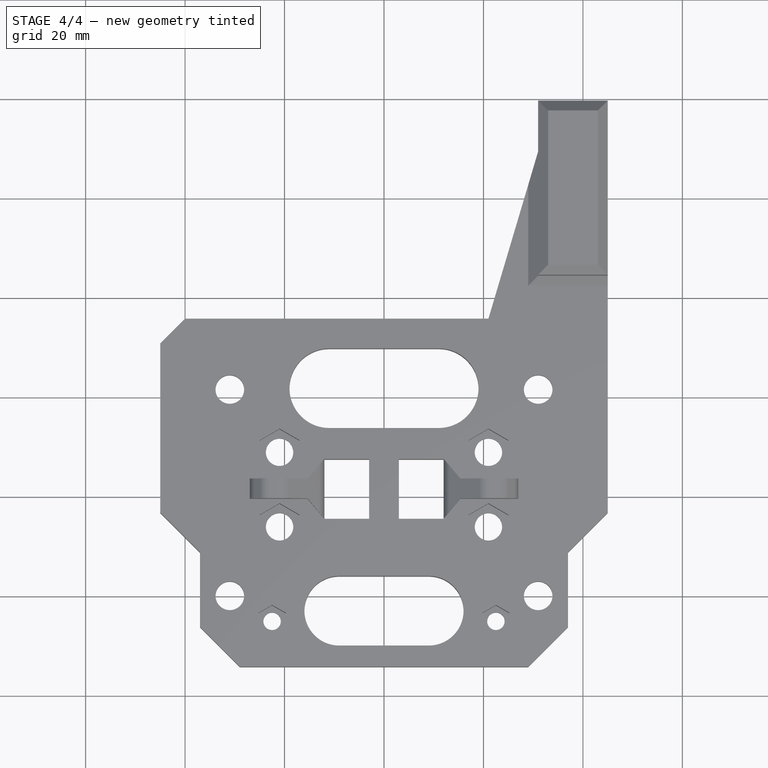
[diagram: stage 4 of 4 — top view after this stage's code; geometry added in this stage tinted green]
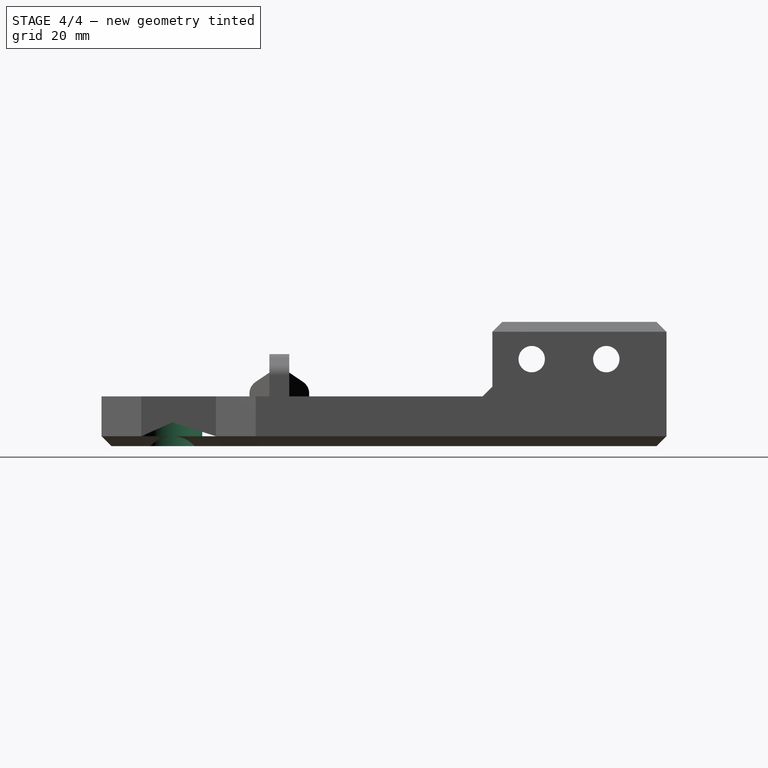
[diagram: stage 4 of 4 — right view after this stage's code; geometry added in this stage tinted green]
FEATURE [PartDesign::Pocket] Pocket014  label="Bottomside bolt pockets"
  AllowMultiFace = false
  BaseFeature = -> Pocket010
  Direction = (0,0,-1)
  Length = 4.8
  Length2 = 100
  Profile = -> Sketch023
  Reversed = true
  Type = 0
FEATURE [PartDesign::Hole] Hole002  label="Drag chain mount clearance holes"
  BaseFeature = -> Pocket014
  CustomThreadClearance = 0
  Depth = 25
  DepthType = 0
  Diameter = 5.3
  DrillForDepth = false
  DrillPoint = 1
  DrillPointAngle = 118
  HoleCutCountersinkAngle = 90
  HoleCutCustomValues = false
  HoleCutDepth = 0
  HoleCutDiameter = 6.1
  HoleCutType = 0
  ModelThread = false
  Profile = -> Sketch022
  Tapered = false
  TaperedAngle = 90
  ThreadClass = 0
  ThreadDepth = 23.5
  ThreadDepthType = 0
  ThreadDirection = 0
  ThreadFit = 1
  ThreadSize = 13
  ThreadType = 1
  Threaded = false
  UseCustomThreadClearance = false
FEATURE [PartDesign::Pocket] Pocket011  label="Drag-Chain Mount Hex Nut Cutout"
  BaseFeature = -> Hole002
  Direction = (1,-4e-16,0)
  Length = 7
  Length2 = 100
  Profile = -> Sketch015
  Type = 0
FEATURE [PartDesign::Body] Body001  label="Body"
  Group = -> [Sketch016,Pad004,DatumPlane010,DatumPlane008,DatumPlane012,DatumPlane009,Pad007,Chamfer,Pad006,Sketch018,Chamfer017,Chamfer018,Fillet,Fillet007,Pocket010,Sketch013,Sketch023,Pocket014,Sketch021,Sketch022,Hole002,Sketch015,Pocket011]
  Origin = -> Origin001
  Tip = -> Pocket011
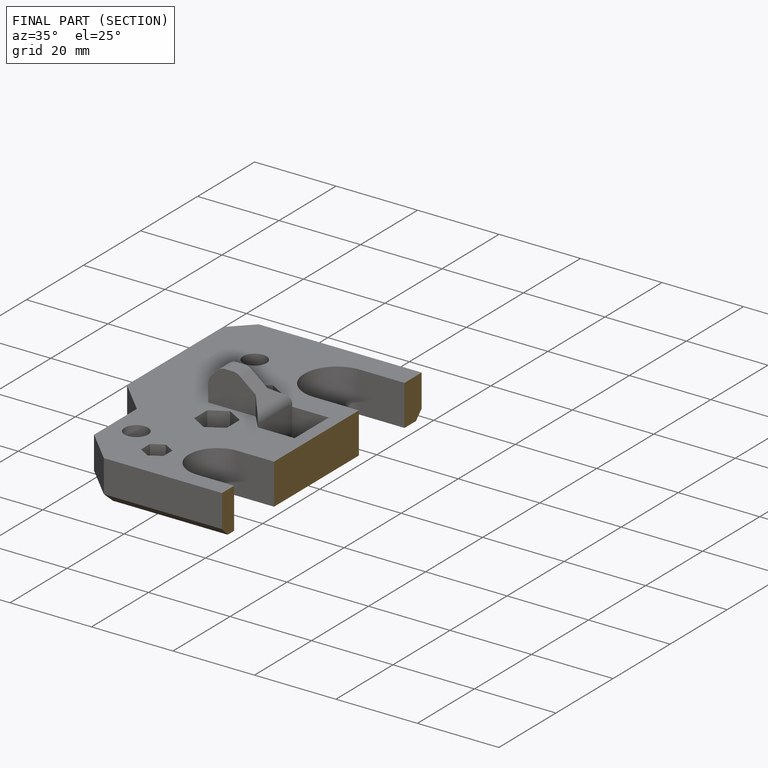
[diagram: finished part — half-section view (interior)]
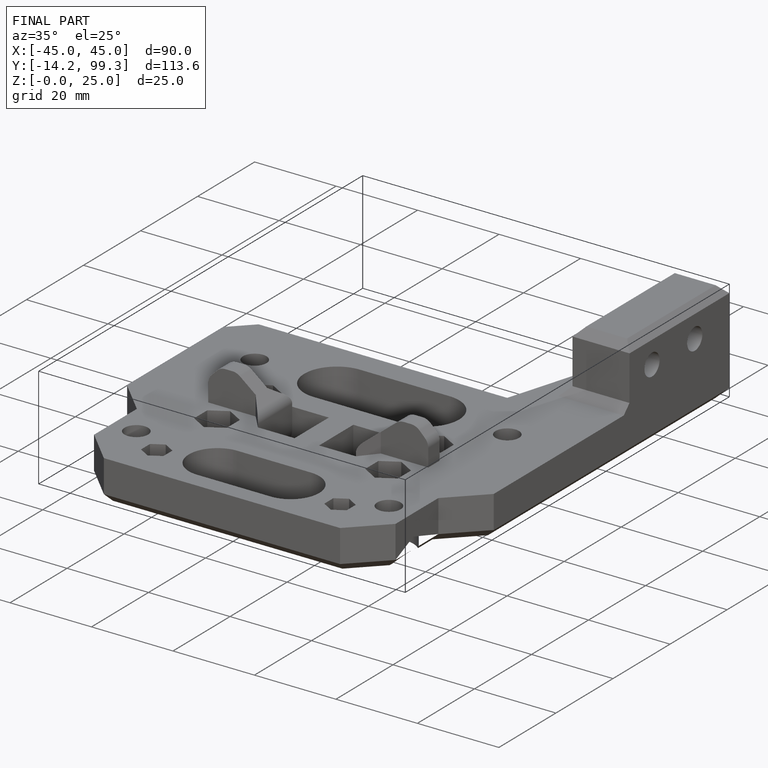
[diagram: finished part — iso view with bounding-box wireframe]
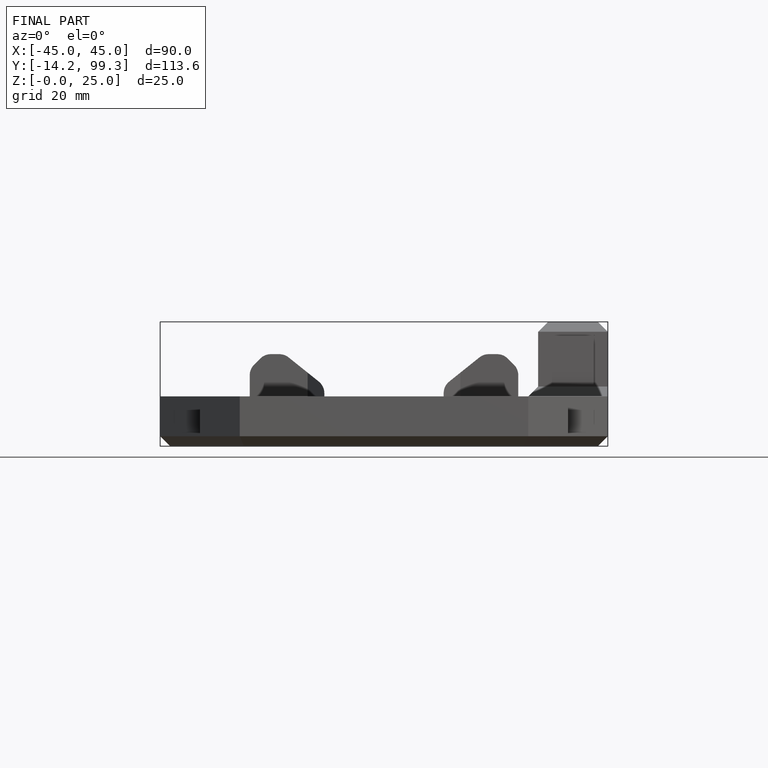
[diagram: finished part — front view with bounding-box wireframe]
